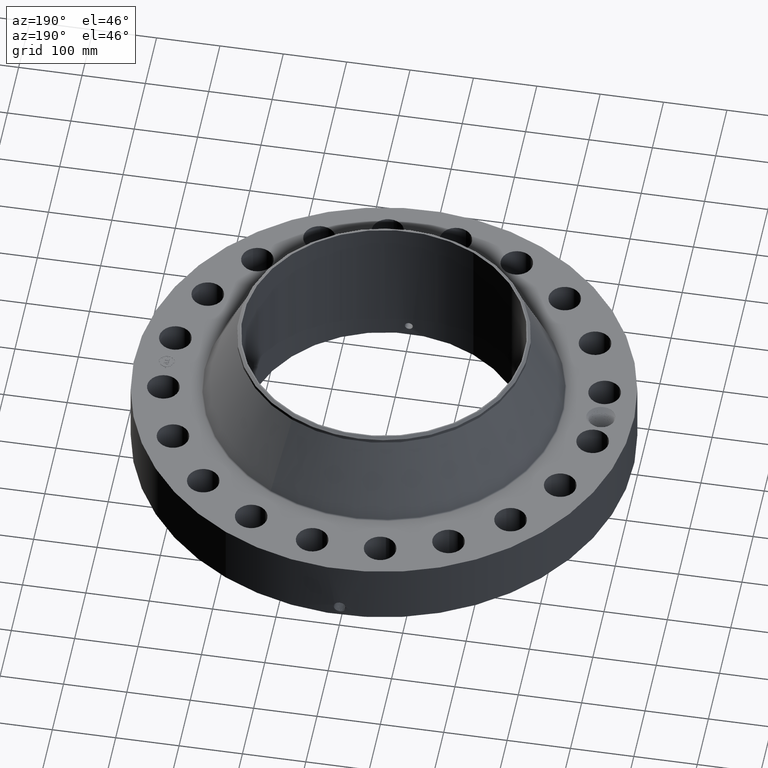
[diagram: clean part render]
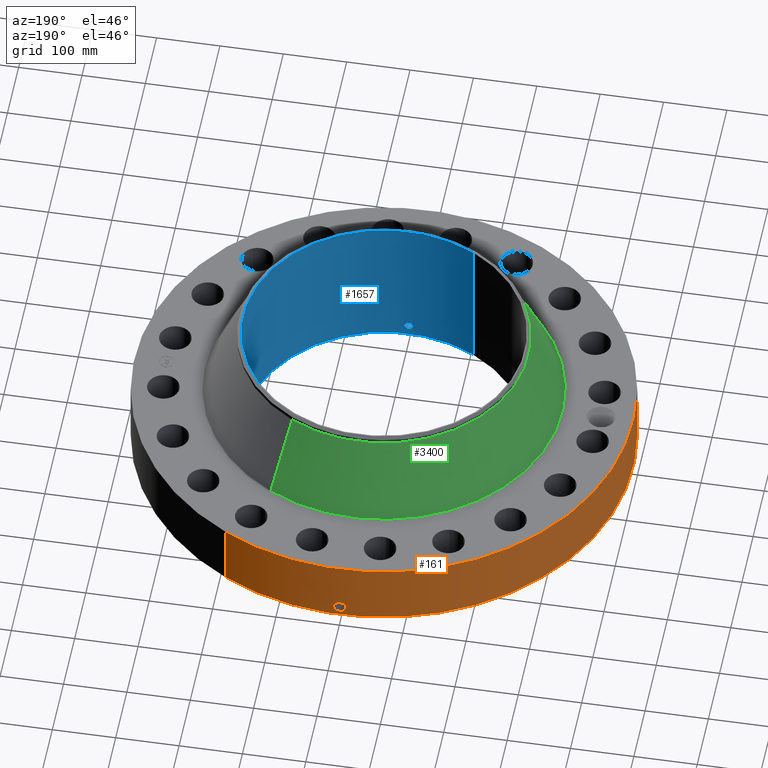
[diagram: same view with three faces highlighted in distinct colors, each labeled with its STEP entity id]
A machine part, auxiliary view with three faces highlighted in distinct colors.
Their STEP definitions:

[orange] entity #161 — the highlighted cylindrical surface (partial cylindrical patch) has radius 393.7 mm, axis along (0, 0, -1).
#38=AXIS2_PLACEMENT_3D('Cylinder Axis2P3D',#35,#36,#37) ;
#42=AXIS2_PLACEMENT_3D('Circle Axis2P3D',#40,#41,$) ;
#58=AXIS2_PLACEMENT_3D('Circle Axis2P3D',#56,#57,$) ;
#35=CARTESIAN_POINT('Axis2P3D Location',(0.,0.,4.75000000002)) ;
#40=CARTESIAN_POINT('Axis2P3D Location',(0.,0.,0.250000000001)) ;
#44=CARTESIAN_POINT('Vertex',(-7.43109584839,-13.6025297094,0.250000000001)) ;
#46=CARTESIAN_POINT('Vertex',(7.43109584839,13.6025297094,0.250000000001)) ;
#49=CARTESIAN_POINT('Line Origine',(-7.43109584839,-13.6025297094,2.25000000001)) ;
#53=CARTESIAN_POINT('Vertex',(-7.43109584839,-13.6025297094,4.25000000002)) ;
#56=CARTESIAN_POINT('Axis2P3D Location',(0.,0.,4.25000000002)) ;
#60=CARTESIAN_POINT('Vertex',(7.43109584839,13.6025297094,4.25000000002)) ;
#63=CARTESIAN_POINT('Line Origine',(7.43109584839,13.6025297094,2.25000000001)) ;
#75=CARTESIAN_POINT('Control Point',(-0.000716035987873,15.4999999835,1.29411846132)) ;
#76=CARTESIAN_POINT('Control Point',(-0.0189513544753,15.4999991411,1.29408163339)) ;
#77=CARTESIAN_POINT('Control Point',(-0.0371834900597,15.4999658652,1.29263237184)) ;
#78=CARTESIAN_POINT('Control Point',(-0.0551954079875,15.4999017245,1.28978810279)) ;
#79=CARTESIAN_POINT('Vertex',(-0.000715689072531,15.4999999835,1.29411851058)) ;
#81=CARTESIAN_POINT('Vertex',(-0.0551866331972,15.4999020078,1.28978950648)) ;
#85=CARTESIAN_POINT('Control Point',(-0.0551865381655,15.4999017561,1.28978895984)) ;
#86=CARTESIAN_POINT('Control Point',(-0.0956634609237,15.4997576402,1.28538003789)) ;
#87=CARTESIAN_POINT('Control Point',(-0.135505072629,15.4994511414,1.27361031682)) ;
#88=CARTESIAN_POINT('Control Point',(-0.172208486845,15.499043333,1.2552561516)) ;
#89=CARTESIAN_POINT('Vertex',(-0.172208486845,15.499043333,1.2552561516)) ;
#93=CARTESIAN_POINT('Control Point',(-0.0310323790945,15.4999689352,0.531190572475)) ;
#94=CARTESIAN_POINT('Control Point',(-0.0962147443483,15.4998384341,0.539439149385)) ;
#95=CARTESIAN_POINT('Control Point',(-0.159342611616,15.4993694038,0.561294240885)) ;
#96=CARTESIAN_POINT('Control Point',(-0.216471151755,15.4986106127,0.596096648227)) ;
#97=CARTESIAN_POINT('Control Point',(-0.288915811047,15.4973689007,0.66418841645)) ;
#98=CARTESIAN_POINT('Control Point',(-0.336544131548,15.4963566666,0.748684191211)) ;
#99=CARTESIAN_POINT('Control Point',(-0.349591216911,15.4960623139,0.778744853324)) ;
#100=CARTESIAN_POINT('Control Point',(-0.37180929617,15.4955454003,0.848976849796)) ;
#101=CARTESIAN_POINT('Control Point',(-0.377297540876,15.4954059048,0.922143933678)) ;
#102=CARTESIAN_POINT('Control Point',(-0.375031896034,15.495462595,0.962946259406)) ;
#103=CARTESIAN_POINT('Control Point',(-0.356609233645,15.4959155882,1.06074175672)) ;
#104=CARTESIAN_POINT('Control Point',(-0.308224982612,15.4969791869,1.1479694101)) ;
#105=CARTESIAN_POINT('Control Point',(-0.269878670998,15.4977453412,1.1932720415)) ;
#106=CARTESIAN_POINT('Control Point',(-0.223570654771,15.4984726526,1.22957162245)) ;
#107=CARTESIAN_POINT('Control Point',(-0.172208486845,15.499043333,1.2552561516)) ;
#108=CARTESIAN_POINT('Vertex',(-0.0310323790945,15.4999689352,0.531190572475)) ;
#112=CARTESIAN_POINT('Control Point',(-0.0310323790945,15.4999689352,0.531190572475)) ;
#113=CARTESIAN_POINT('Control Point',(-0.0206834093071,15.4999896548,0.530874756027)) ;
#114=CARTESIAN_POINT('Control Point',(-0.010326808527,15.5000000019,0.530936298078)) ;
#115=CARTESIAN_POINT('Control Point',(2.72878354804E-006,15.5000000001,0.531374667806)) ;
#116=CARTESIAN_POINT('Vertex',(2.72878354341E-006,15.5000000001,0.531374667806)) ;
#120=CARTESIAN_POINT('Control Point',(0.192610889666,15.4988032134,0.587439234252)) ;
#121=CARTESIAN_POINT('Control Point',(0.149000022278,15.4993451861,0.562055690466)) ;
#122=CARTESIAN_POINT('Control Point',(0.101115380376,15.4997773578,0.543785163535)) ;
#123=CARTESIAN_POINT('Control Point',(0.0508052333193,15.4999999911,0.533530646345)) ;
#124=CARTESIAN_POINT('Control Point',(2.7287836031E-006,15.5000000001,0.531374667806)) ;
#125=CARTESIAN_POINT('Vertex',(0.192610889666,15.4988032134,0.587439234252)) ;
#129=CARTESIAN_POINT('Control Point',(0.192610889666,15.4988032134,0.587439234252)) ;
#130=CARTESIAN_POINT('Control Point',(0.249429569813,15.498097101,0.620510335483)) ;
#131=CARTESIAN_POINT('Control Point',(0.299467782723,15.4972148406,0.66489989766)) ;
#132=CARTESIAN_POINT('Control Point',(0.339579126555,15.4963190251,0.719041536507)) ;
#133=CARTESIAN_POINT('Control Point',(0.383746903818,15.4952584915,0.817252429366)) ;
#134=CARTESIAN_POINT('Control Point',(0.392270646339,15.495034134,0.922536354797)) ;
#135=CARTESIAN_POINT('Control Point',(0.390135577342,15.4950896723,0.962706758421)) ;
#136=CARTESIAN_POINT('Control Point',(0.375947599801,15.4954523248,1.03761773988)) ;
#137=CARTESIAN_POINT('Control Point',(0.343799045646,15.4961992285,1.10605227223)) ;
#138=CARTESIAN_POINT('Control Point',(0.324715716617,15.4966202525,1.13647425873)) ;
#139=CARTESIAN_POINT('Control Point',(0.263013421605,15.4978647737,1.21278734965)) ;
#140=CARTESIAN_POINT('Control Point',(0.17995992986,15.4991016752,1.26569223008)) ;
#141=CARTESIAN_POINT('Control Point',(0.121273454317,15.4997081071,1.28769128853)) ;
#142=CARTESIAN_POINT('Control Point',(0.0601570437676,15.5000001004,1.29710367323)) ;
#143=CARTESIAN_POINT('Control Point',(-2.58579355311E-005,15.5,1.2941529843)) ;
#144=CARTESIAN_POINT('Vertex',(-2.58579355491E-005,15.5,1.2941529843)) ;
#148=CARTESIAN_POINT('Control Point',(-0.000715689062919,15.4999999835,1.29411851056)) ;
#149=CARTESIAN_POINT('Control Point',(-0.000370798054543,15.4999999995,1.29413607236)) ;
#150=CARTESIAN_POINT('Control Point',(-2.58579405827E-005,15.5,1.2941529843)) ;
#36=DIRECTION('Axis2P3D Direction',(0.,0.,-0.0393700787402)) ;
#37=DIRECTION('Axis2P3D XDirection',(0.0188750212049,0.0345504945626,0.)) ;
#41=DIRECTION('Axis2P3D Direction',(0.,0.,-0.0393700787402)) ;
#50=DIRECTION('Vector Direction',(0.,0.,-0.0393700787402)) ;
#57=DIRECTION('Axis2P3D Direction',(0.,0.,-0.0393700787402)) ;
#64=DIRECTION('Vector Direction',(0.,0.,-0.0393700787402)) ;
#51=VECTOR('Line Direction',#50,0.0393700787402) ;
#65=VECTOR('Line Direction',#64,0.0393700787402) ;
#69=ORIENTED_EDGE('',*,*,#48,.F.) ;
#70=ORIENTED_EDGE('',*,*,#55,.T.) ;
#71=ORIENTED_EDGE('',*,*,#62,.T.) ;
#72=ORIENTED_EDGE('',*,*,#67,.F.) ;
#153=ORIENTED_EDGE('',*,*,#83,.T.) ;
#154=ORIENTED_EDGE('',*,*,#91,.T.) ;
#155=ORIENTED_EDGE('',*,*,#110,.F.) ;
#156=ORIENTED_EDGE('',*,*,#118,.T.) ;
#157=ORIENTED_EDGE('',*,*,#127,.F.) ;
#158=ORIENTED_EDGE('',*,*,#146,.T.) ;
#159=ORIENTED_EDGE('',*,*,#151,.F.) ;
#160=FACE_BOUND('',#152,.T.) ;
#161=ADVANCED_FACE('PartBody',(#73,#160),#39,.T.) ;
#74=B_SPLINE_CURVE_WITH_KNOTS('',3,(#75,#76,#77,#78),.UNSPECIFIED.,.F.,.U.,(4,4),(34.6166187511,36.6396542012),.UNSPECIFIED.) ;
#84=B_SPLINE_CURVE_WITH_KNOTS('',3,(#85,#86,#87,#88),.UNSPECIFIED.,.F.,.U.,(4,4),(0.,4.5750521311),.UNSPECIFIED.) ;
#92=B_SPLINE_CURVE_WITH_KNOTS('',5,(#93,#94,#95,#96,#97,#98,#99,#100,#101,#102,#103,#104,#105,#106,#107),.UNSPECIFIED.,.F.,.U.,(6,3,3,3,6),(0.,11.4182832192,17.2583175801,24.6133077775,35.2837322353),.UNSPECIFIED.) ;
#111=B_SPLINE_CURVE_WITH_KNOTS('',3,(#112,#113,#114,#115),.UNSPECIFIED.,.F.,.U.,(4,4),(0.,1.07955746268),.UNSPECIFIED.) ;
#119=B_SPLINE_CURVE_WITH_KNOTS('',4,(#120,#121,#122,#123,#124),.UNSPECIFIED.,.F.,.U.,(5,5),(0.,7.07927452693),.UNSPECIFIED.) ;
#128=B_SPLINE_CURVE_WITH_KNOTS('',5,(#129,#130,#131,#132,#133,#134,#135,#136,#137,#138,#139,#140,#141,#142,#143),.UNSPECIFIED.,.F.,.U.,(6,3,3,3,6),(0.,11.5290940033,18.6104401279,25.0339241118,36.2833576085),.UNSPECIFIED.) ;
#147=B_SPLINE_CURVE_WITH_KNOTS('',2,(#148,#149,#150),.UNSPECIFIED.,.F.,.U.,(3,3),(1.02129691838,1.0470875062),.UNSPECIFIED.) ;
#43=CIRCLE('generated circle',#42,15.5000000001) ;
#59=CIRCLE('generated circle',#58,15.5000000001) ;
#39=CYLINDRICAL_SURFACE('generated cylinder',#38,15.5000000001) ;
#48=EDGE_CURVE('',#45,#47,#43,.T.) ;
#55=EDGE_CURVE('',#45,#54,#52,.F.) ;
#62=EDGE_CURVE('',#54,#61,#59,.T.) ;
#67=EDGE_CURVE('',#47,#61,#66,.F.) ;
#83=EDGE_CURVE('',#80,#82,#74,.T.) ;
#91=EDGE_CURVE('',#82,#90,#84,.T.) ;
#110=EDGE_CURVE('',#109,#90,#92,.T.) ;
#118=EDGE_CURVE('',#109,#117,#111,.T.) ;
#127=EDGE_CURVE('',#126,#117,#119,.T.) ;
#146=EDGE_CURVE('',#126,#145,#128,.T.) ;
#151=EDGE_CURVE('',#80,#145,#147,.T.) ;
#68=EDGE_LOOP('',(#69,#70,#71,#72)) ;
#152=EDGE_LOOP('',(#153,#154,#155,#156,#157,#158,#159)) ;
#73=FACE_OUTER_BOUND('',#68,.T.) ;
#52=LINE('Line',#49,#51) ;
#66=LINE('Line',#63,#65) ;
#45=VERTEX_POINT('',#44) ;
#47=VERTEX_POINT('',#46) ;
#54=VERTEX_POINT('',#53) ;
#61=VERTEX_POINT('',#60) ;
#80=VERTEX_POINT('',#79) ;
#82=VERTEX_POINT('',#81) ;
#90=VERTEX_POINT('',#89) ;
#109=VERTEX_POINT('',#108) ;
#117=VERTEX_POINT('',#116) ;
#126=VERTEX_POINT('',#125) ;
#145=VERTEX_POINT('',#144) ;

[blue] entity #1657 — the highlighted cylindrical surface (partial cylindrical patch) has radius 222.25 mm, axis along (0, 0, -1).
#260=AXIS2_PLACEMENT_3D('Circle Axis2P3D',#258,#259,$) ;
#1588=AXIS2_PLACEMENT_3D('Cylinder Axis2P3D',#1585,#1586,#1587) ;
#1592=AXIS2_PLACEMENT_3D('Circle Axis2P3D',#1590,#1591,$) ;
#258=CARTESIAN_POINT('Axis2P3D Location',(0.,0.,0.250000000001)) ;
#262=CARTESIAN_POINT('Vertex',(4.1949734628,7.67884741657,0.250000000001)) ;
#264=CARTESIAN_POINT('Vertex',(-4.1949734628,-7.67884741657,0.250000000001)) ;
#1585=CARTESIAN_POINT('Axis2P3D Location',(0.,0.,4.75000000002)) ;
#1590=CARTESIAN_POINT('Axis2P3D Location',(0.,0.,9.25000000004)) ;
#1594=CARTESIAN_POINT('Vertex',(4.1949734628,7.67884741657,9.25000000004)) ;
#1596=CARTESIAN_POINT('Vertex',(-4.1949734628,-7.67884741657,9.25000000004)) ;
#1599=CARTESIAN_POINT('Line Origine',(4.1949734628,7.67884741657,4.75000000002)) ;
#1604=CARTESIAN_POINT('Line Origine',(-4.1949734628,-7.67884741657,4.75000000002)) ;
#1616=CARTESIAN_POINT('Control Point',(0.219395640473,-8.74724902775,0.820143615352)) ;
#1617=CARTESIAN_POINT('Control Point',(0.194443068215,-8.74787488001,0.774468238209)) ;
#1618=CARTESIAN_POINT('Control Point',(0.157605447938,-8.74870979795,0.735288642987)) ;
#1619=CARTESIAN_POINT('Control Point',(0.111108465407,-8.74952178207,0.706757102117)) ;
#1620=CARTESIAN_POINT('Control Point',(0.0336737441806,-8.7501678247,0.684117473101)) ;
#1621=CARTESIAN_POINT('Control Point',(-0.0446708132795,-8.74994457888,0.691943591515)) ;
#1622=CARTESIAN_POINT('Control Point',(-0.0703004973811,-8.74977127149,0.697956161966)) ;
#1623=CARTESIAN_POINT('Control Point',(-0.143956539063,-8.7490054122,0.725788035504)) ;
#1624=CARTESIAN_POINT('Control Point',(-0.203244057791,-8.74775530938,0.780502397659)) ;
#1625=CARTESIAN_POINT('Control Point',(-0.232209405034,-8.74693537811,0.826741366631)) ;
#1626=CARTESIAN_POINT('Control Point',(-0.255840466694,-8.74626133799,0.904888177489)) ;
#1627=CARTESIAN_POINT('Control Point',(-0.248282857574,-8.74647673028,0.984252960314)) ;
#1628=CARTESIAN_POINT('Control Point',(-0.242049079158,-8.74665697291,1.01081557328)) ;
#1629=CARTESIAN_POINT('Control Point',(-0.2323155221,-8.74692497551,1.03620669997)) ;
#1630=CARTESIAN_POINT('Control Point',(-0.219395640473,-8.74724902775,1.05985638466)) ;
#1631=CARTESIAN_POINT('Vertex',(0.219395640473,-8.74724902775,0.820143615352)) ;
#1633=CARTESIAN_POINT('Vertex',(-0.219395640473,-8.74724902775,1.05985638466)) ;
#1637=CARTESIAN_POINT('Control Point',(-0.219395640473,-8.74724902775,1.05985638466)) ;
#1638=CARTESIAN_POINT('Control Point',(-0.19444306822,-8.74787488001,1.10553176179)) ;
#1639=CARTESIAN_POINT('Control Point',(-0.157605447953,-8.74870979795,1.14471135701)) ;
#1640=CARTESIAN_POINT('Control Point',(-0.111108465386,-8.74952178207,1.1732428979)) ;
#1641=CARTESIAN_POINT('Control Point',(-0.033673744169,-8.7501678247,1.19588252691)) ;
#1642=CARTESIAN_POINT('Control Point',(0.0446708132816,-8.74994457888,1.18805640849)) ;
#1643=CARTESIAN_POINT('Control Point',(0.0703004973811,-8.74977127149,1.18204383804)) ;
#1644=CARTESIAN_POINT('Control Point',(0.143956539021,-8.7490054122,1.15421196452)) ;
#1645=CARTESIAN_POINT('Control Point',(0.203244057724,-8.74775530938,1.09949760241)) ;
#1646=CARTESIAN_POINT('Control Point',(0.232209405061,-8.74693537811,1.05325863329)) ;
#1647=CARTESIAN_POINT('Control Point',(0.2558404667,-8.74626133799,0.975111822437)) ;
#1648=CARTESIAN_POINT('Control Point',(0.248282857567,-8.74647673028,0.895747039619)) ;
#1649=CARTESIAN_POINT('Control Point',(0.242049079185,-8.74665697291,0.869184426797)) ;
#1650=CARTESIAN_POINT('Control Point',(0.232315522118,-8.74692497551,0.843793300069)) ;
#1651=CARTESIAN_POINT('Control Point',(0.219395640473,-8.74724902775,0.820143615352)) ;
#259=DIRECTION('Axis2P3D Direction',(0.,0.,-0.0393700787402)) ;
#1586=DIRECTION('Axis2P3D Direction',(0.,0.,-0.0393700787402)) ;
#1587=DIRECTION('Axis2P3D XDirection',(-0.0188750212049,-0.0345504945626,0.)) ;
#1591=DIRECTION('Axis2P3D Direction',(0.,0.,-0.0393700787402)) ;
#1600=DIRECTION('Vector Direction',(0.,0.,-0.0393700787402)) ;
#1605=DIRECTION('Vector Direction',(0.,0.,-0.0393700787402)) ;
#1601=VECTOR('Line Direction',#1600,0.0393700787402) ;
#1606=VECTOR('Line Direction',#1605,0.0393700787402) ;
#1610=ORIENTED_EDGE('',*,*,#1598,.F.) ;
#1611=ORIENTED_EDGE('',*,*,#1603,.T.) ;
#1612=ORIENTED_EDGE('',*,*,#266,.T.) ;
#1613=ORIENTED_EDGE('',*,*,#1608,.F.) ;
#1654=ORIENTED_EDGE('',*,*,#1635,.F.) ;
#1655=ORIENTED_EDGE('',*,*,#1652,.F.) ;
#1656=FACE_BOUND('',#1653,.T.) ;
#1657=ADVANCED_FACE('PartBody',(#1614,#1656),#1589,.F.) ;
#1615=B_SPLINE_CURVE_WITH_KNOTS('',5,(#1616,#1617,#1618,#1619,#1620,#1621,#1622,#1623,#1624,#1625,#1626,#1627,#1628,#1629,#1630),.UNSPECIFIED.,.F.,.U.,(6,3,3,3,6),(0.,9.34855036552,14.0228595242,23.3728957315,28.2133651973),.UNSPECIFIED.) ;
#1636=B_SPLINE_CURVE_WITH_KNOTS('',5,(#1637,#1638,#1639,#1640,#1641,#1642,#1643,#1644,#1645,#1646,#1647,#1648,#1649,#1650,#1651),.UNSPECIFIED.,.F.,.U.,(6,3,3,3,6),(0.,9.34855036371,14.0228595225,23.3728957218,28.2133651941),.UNSPECIFIED.) ;
#261=CIRCLE('generated circle',#260,8.75000000003) ;
#1593=CIRCLE('generated circle',#1592,8.75000000003) ;
#1589=CYLINDRICAL_SURFACE('generated cylinder',#1588,8.75000000003) ;
#266=EDGE_CURVE('',#263,#265,#261,.T.) ;
#1598=EDGE_CURVE('',#1595,#1597,#1593,.T.) ;
#1603=EDGE_CURVE('',#1595,#263,#1602,.T.) ;
#1608=EDGE_CURVE('',#1597,#265,#1607,.T.) ;
#1635=EDGE_CURVE('',#1632,#1634,#1615,.T.) ;
#1652=EDGE_CURVE('',#1634,#1632,#1636,.T.) ;
#1609=EDGE_LOOP('',(#1610,#1611,#1612,#1613)) ;
#1653=EDGE_LOOP('',(#1654,#1655)) ;
#1614=FACE_OUTER_BOUND('',#1609,.T.) ;
#1602=LINE('Line',#1599,#1601) ;
#1607=LINE('Line',#1604,#1606) ;
#263=VERTEX_POINT('',#262) ;
#265=VERTEX_POINT('',#264) ;
#1595=VERTEX_POINT('',#1594) ;
#1597=VERTEX_POINT('',#1596) ;
#1632=VERTEX_POINT('',#1631) ;
#1634=VERTEX_POINT('',#1633) ;

[green] entity #3400 — the highlighted conical surface has half-angle 24.642 deg.
#2682=AXIS2_PLACEMENT_3D('Circle Axis2P3D',#2680,#2681,$) ;
#3361=AXIS2_PLACEMENT_3D('Cone Axis2P3D',#3358,#3359,#3360) ;
#3391=AXIS2_PLACEMENT_3D('Circle Axis2P3D',#3389,#3390,$) ;
#2658=CARTESIAN_POINT('Vertex',(5.31822179999,9.73493970622,4.3199657965)) ;
#2665=CARTESIAN_POINT('Vertex',(-5.31822179999,-9.73493970622,4.3199657965)) ;
#2680=CARTESIAN_POINT('Axis2P3D Location',(0.,0.,4.3199657965)) ;
#3358=CARTESIAN_POINT('Axis2P3D Location',(0.,0.,8.88236722847)) ;
#3363=CARTESIAN_POINT('Line Origine',(4.81652582372,8.81659138163,6.60116651249)) ;
#3367=CARTESIAN_POINT('Vertex',(4.31482984746,7.89824305704,8.88236722847)) ;
#3374=CARTESIAN_POINT('Vertex',(-4.31482984746,-7.89824305704,8.88236722847)) ;
#3377=CARTESIAN_POINT('Line Origine',(-4.81652582372,-8.81659138163,6.60116651249)) ;
#3389=CARTESIAN_POINT('Axis2P3D Location',(0.,0.,8.88236722847)) ;
#2681=DIRECTION('Axis2P3D Direction',(0.,0.,-0.0393700787402)) ;
#3359=DIRECTION('Axis2P3D Direction',(0.,0.,-0.0393700787402)) ;
#3360=DIRECTION('Axis2P3D XDirection',(-0.0188750212049,-0.0345504945626,0.)) ;
#3364=DIRECTION('Vector Direction',(0.00786997210337,0.0144058873054,-0.0357845923554)) ;
#3378=DIRECTION('Vector Direction',(-0.00786997210337,-0.0144058873054,-0.0357845923554)) ;
#3390=DIRECTION('Axis2P3D Direction',(0.,0.,-0.0393700787402)) ;
#3365=VECTOR('Line Direction',#3364,0.0393700787402) ;
#3379=VECTOR('Line Direction',#3378,0.0393700787402) ;
#3395=ORIENTED_EDGE('',*,*,#2684,.F.) ;
#3396=ORIENTED_EDGE('',*,*,#3381,.T.) ;
#3397=ORIENTED_EDGE('',*,*,#3393,.T.) ;
#3398=ORIENTED_EDGE('',*,*,#3369,.F.) ;
#3400=ADVANCED_FACE('PartBody',(#3399),#3362,.T.) ;
#2683=CIRCLE('generated circle',#2682,11.0929046781) ;
#3392=CIRCLE('generated circle',#3391,9.00000000004) ;
#3362=CONICAL_SURFACE('Cone',#3361,9.00000000004,0.430088996994) ;
#2684=EDGE_CURVE('',#2666,#2659,#2683,.T.) ;
#3369=EDGE_CURVE('',#2659,#3368,#3366,.F.) ;
#3381=EDGE_CURVE('',#2666,#3375,#3380,.F.) ;
#3393=EDGE_CURVE('',#3375,#3368,#3392,.T.) ;
#3394=EDGE_LOOP('',(#3395,#3396,#3397,#3398)) ;
#3399=FACE_OUTER_BOUND('',#3394,.T.) ;
#3366=LINE('Line',#3363,#3365) ;
#3380=LINE('Line',#3377,#3379) ;
#2659=VERTEX_POINT('',#2658) ;
#2666=VERTEX_POINT('',#2665) ;
#3368=VERTEX_POINT('',#3367) ;
#3375=VERTEX_POINT('',#3374) ;